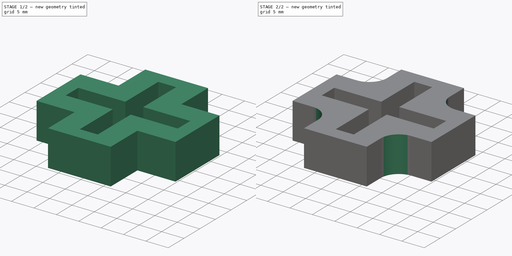
[diagram: build sequence overview — one tinted view per stage of 2, left to right]
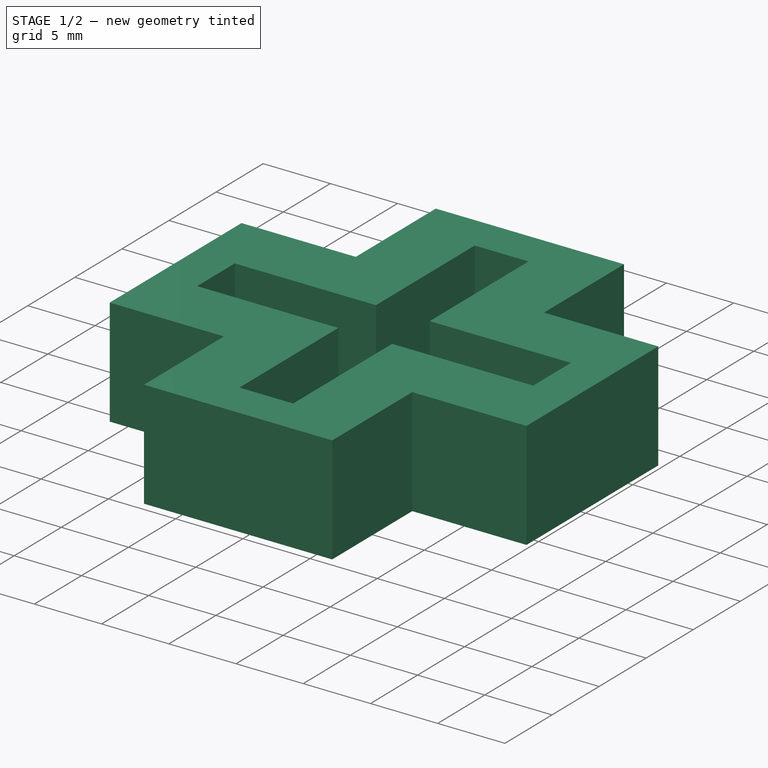
[diagram: stage 1 of 2 — iso view after this stage's code; geometry added in this stage tinted green]
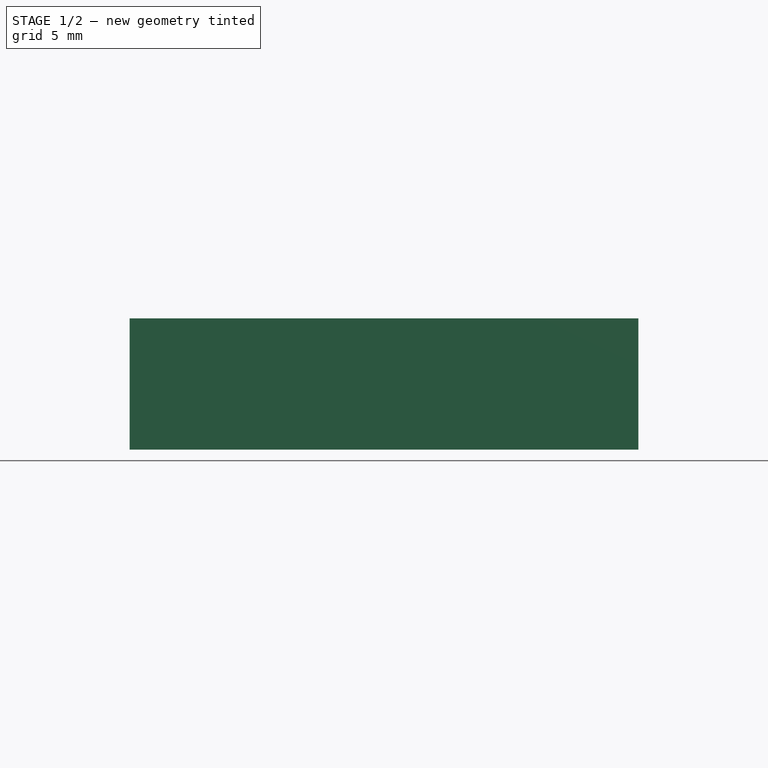
[diagram: stage 1 of 2 — front view after this stage's code; geometry added in this stage tinted green]
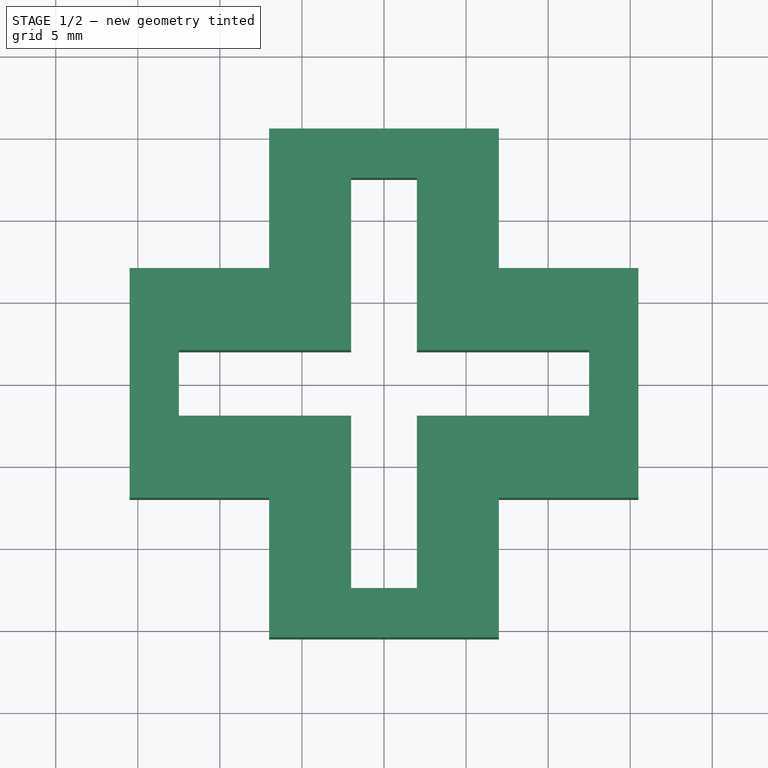
[diagram: stage 1 of 2 — top view after this stage's code; geometry added in this stage tinted green]
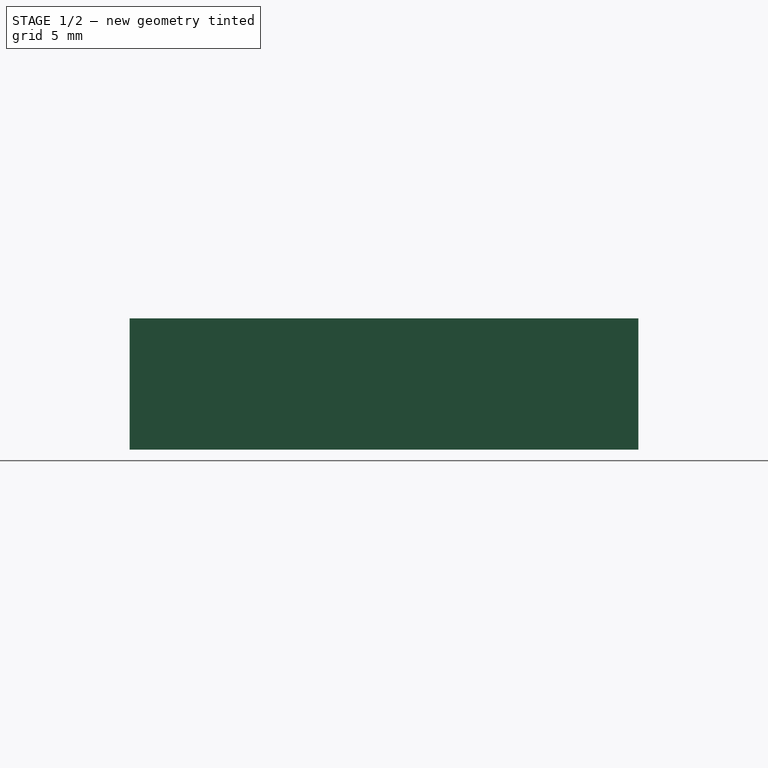
[diagram: stage 1 of 2 — right view after this stage's code; geometry added in this stage tinted green]
FCSTD DOCUMENT  (FreeCAD 0.21R33771 (Git))
Label: plate holder
License: All rights reserved
LicenseURL: https://en.wikipedia.org/wiki/All_rights_reserved
objects: Sketcher::SketchObject×1, PartDesign::Pad×1, PartDesign::Fillet×1, PartDesign::Body×1
note: 6 computed .brp shape members not serialized (recipe doc carries the construction recipe); baked Part::Feature solids carry a one-line shape summary decoded from their .brp

FEATURE [Sketcher::SketchObject] Sketch
  FullyConstrained = true
  MapMode = 5
  Support = -> [XY_Plane]
  sketch-geometry (24):
    g0: LineSegment StartX=-2 StartY=2 StartZ=0 EndX=-2 EndY=12.5 EndZ=0
    g1: LineSegment StartX=-2 StartY=12.5 StartZ=0 EndX=2 EndY=12.5 EndZ=0
    g2: LineSegment StartX=2 StartY=12.5 StartZ=0 EndX=2 EndY=2 EndZ=0
    g3: LineSegment StartX=2 StartY=2 StartZ=0 EndX=12.5 EndY=2 EndZ=0
    g4: LineSegment StartX=12.5 StartY=2 StartZ=0 EndX=12.5 EndY=-2 EndZ=0
    g5: LineSegment StartX=12.5 StartY=-2 StartZ=0 EndX=2 EndY=-2 EndZ=0
    g6: LineSegment StartX=2 StartY=-2 StartZ=0 EndX=2 EndY=-12.5 EndZ=0
    g7: LineSegment StartX=2 StartY=-12.5 StartZ=0 EndX=-2 EndY=-12.5 EndZ=0
    g8: LineSegment StartX=-2 StartY=-12.5 StartZ=0 EndX=-2 EndY=-2 EndZ=0
    g9: LineSegment StartX=-2 StartY=-2 StartZ=0 EndX=-12.5 EndY=-2 EndZ=0
    g10: LineSegment StartX=-12.5 StartY=-2 StartZ=0 EndX=-12.5 EndY=2 EndZ=0
    g11: LineSegment StartX=-12.5 StartY=2 StartZ=0 EndX=-2 EndY=2 EndZ=0
    g12: LineSegment StartX=-7 StartY=7 StartZ=0 EndX=-7 EndY=15.5 EndZ=0
    g13: LineSegment StartX=-7 StartY=15.5 StartZ=0 EndX=7 EndY=15.5 EndZ=0
    g14: LineSegment StartX=7 StartY=15.5 StartZ=0 EndX=7 EndY=7 EndZ=0
    g15: LineSegment StartX=7 StartY=7 StartZ=0 EndX=15.5 EndY=7 EndZ=0
    g16: LineSegment StartX=15.5 StartY=7 StartZ=0 EndX=15.5 EndY=-7 EndZ=0
    g17: LineSegment StartX=15.5 StartY=-7 StartZ=0 EndX=7 EndY=-7 EndZ=0
    g18: LineSegment StartX=7 StartY=-7 StartZ=0 EndX=7 EndY=-15.5 EndZ=0
    g19: LineSegment StartX=7 StartY=-15.5 StartZ=0 EndX=-7 EndY=-15.5 EndZ=0
    g20: LineSegment StartX=-7 StartY=-15.5 StartZ=0 EndX=-7 EndY=-7 EndZ=0
    g21: LineSegment StartX=-7 StartY=-7 StartZ=0 EndX=-15.5 EndY=-7 EndZ=0
    g22: LineSegment StartX=-15.5 StartY=-7 StartZ=0 EndX=-15.5 EndY=7 EndZ=0
    g23: LineSegment StartX=-15.5 StartY=7 StartZ=0 EndX=-7 EndY=7 EndZ=0
  constraints (70):
    c: Vertical(g0)
    c: Coincident(g0,g1)
    c: Horizontal(g1)
    c: Coincident(g1,g2)
    c: Vertical(g2)
    c: Coincident(g2,g3)
    c: Horizontal(g3)
    c: Coincident(g3,g4)
    c: Coincident(g4,g5)
    c: Horizontal(g5)
    c: Coincident(g5,g6)
    c: Coincident(g6,g7)
    c: Horizontal(g7)
    c: Coincident(g7,g8)
    c: Vertical(g8)
    c: Coincident(g8,g9)
    c: Horizontal(g9)
    c: Coincident(g9,g10)
    c: Vertical(g10)
    c: Coincident(g10,g11)
    c: Coincident(g11,g0)
    c: Horizontal(g11)
    c: Vertical(g12)
    c: Coincident(g12,g13)
    c: Horizontal(g13)
    c: Coincident(g13,g14)
    c: Vertical(g14)
    c: Coincident(g14,g15)
    c: Horizontal(g15)
    c: Coincident(g15,g16)
    c: Coincident(g16,g17)
    c: Coincident(g17,g18)
    c: Coincident(g18,g19)
    c: Coincident(g19,g20)
    c: Coincident(g20,g21)
    c: Horizontal(g21)
    c: Coincident(g21,g22)
    c: Coincident(g22,g23)
    c: Coincident(g23,g12)
    c: Horizontal(g23)
    c: Horizontal(g19)
    c: Horizontal(g17)
    c: Vertical(g18)
    c: Vertical(g16)
    c: Vertical(g4)
    c: Vertical(g22)
    c: Vertical(g20)
    c: Vertical(g6)
    c: Vertical(g8,g0)
    c: Vertical(g5,g2)
    c: Horizontal(g8,g5)
    c: Horizontal(g0,g2)
    c: DistanceY(g6,g1) = 25
    c: DistanceX(g0,g2) = 4
    c: DistanceY(g5,g2) = 4
    c: DistanceX(g9,g4) = 25
    c: Equal(g9,g5)
    c: Equal(g0,g8)
    c: Symmetric(g8,g2,g-1)
    c: DistanceX(g12,g0) = 5
    c: DistanceX(g1,g14) = 5
    c: Vertical(g17,g14)
    c: Horizontal(g12,g14)
    c: Horizontal(g20,g17)
    c: Symmetric(g20,g14,g-1)
    c: DistanceX(g4,g16) = 3
    c: DistanceX(g21,g9) = 3
    c: DistanceY(g19,g7) = 3
    c: DistanceY(g0,g12) = 3
    c: DistanceY(g10,g12) = 5
FEATURE [PartDesign::Pad] Pad
  Direction = (0,0,1)
  Length = 8
  Length2 = 10
  Profile = -> Sketch
  ReferenceAxis = -> Sketch [N_Axis]
  Type = 0
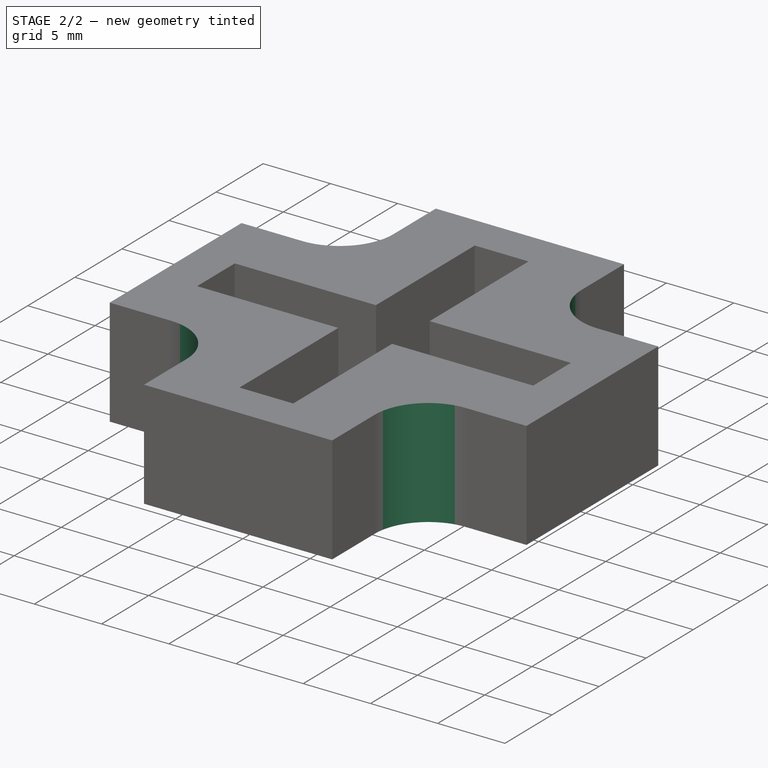
[diagram: stage 2 of 2 — iso view after this stage's code; geometry added in this stage tinted green]
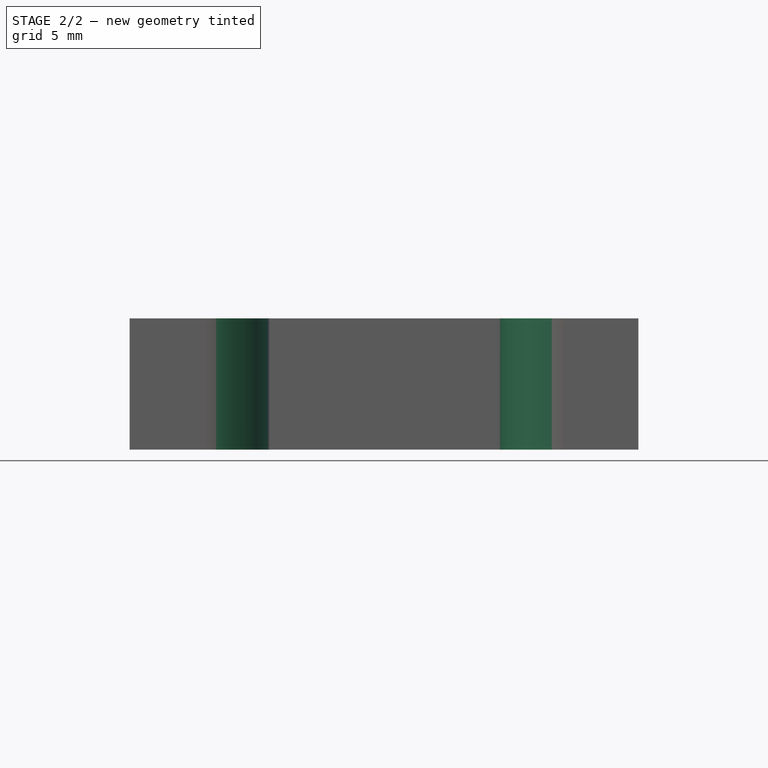
[diagram: stage 2 of 2 — front view after this stage's code; geometry added in this stage tinted green]
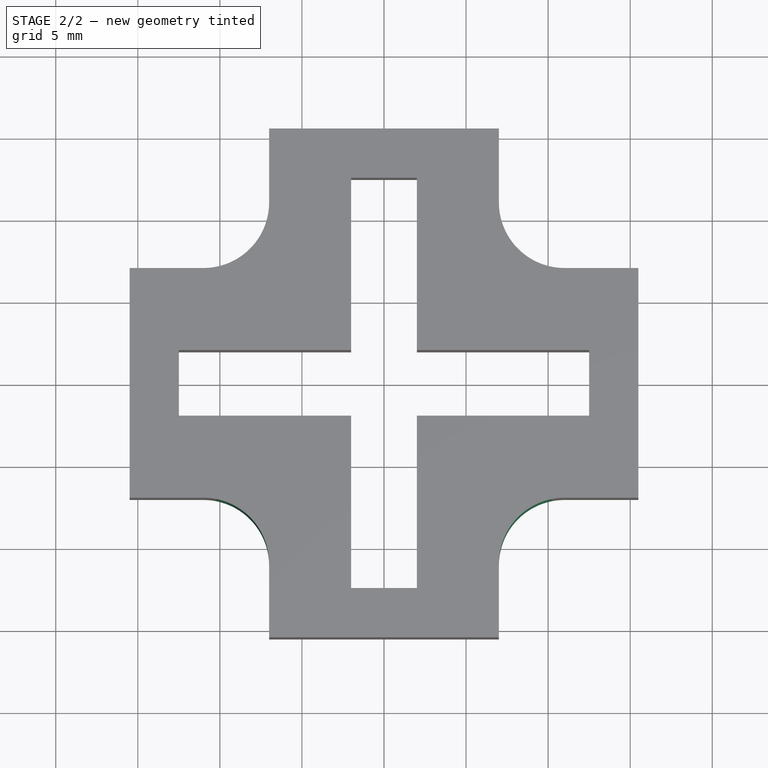
[diagram: stage 2 of 2 — top view after this stage's code; geometry added in this stage tinted green]
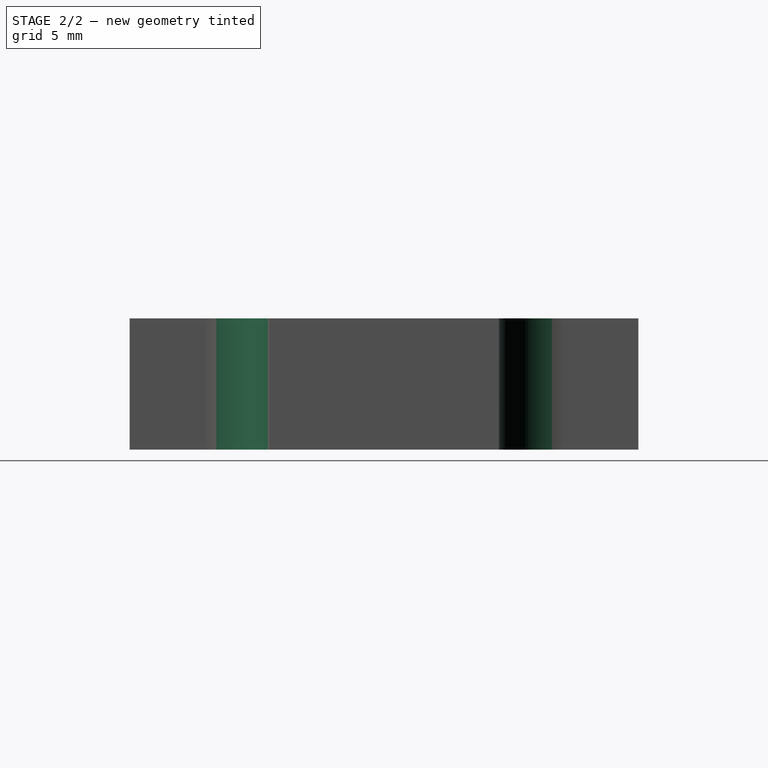
[diagram: stage 2 of 2 — right view after this stage's code; geometry added in this stage tinted green]
FEATURE [PartDesign::Fillet] Fillet
  Base = -> Pad [Edge17,Edge26,Edge1,Edge8]
  BaseFeature = -> Pad
  Radius = 4
  SupportTransform = false
  UseAllEdges = false
FEATURE [PartDesign::Body] Body
  Group = -> [Sketch,Pad,Fillet]
  Origin = -> Origin
  Tip = -> Fillet
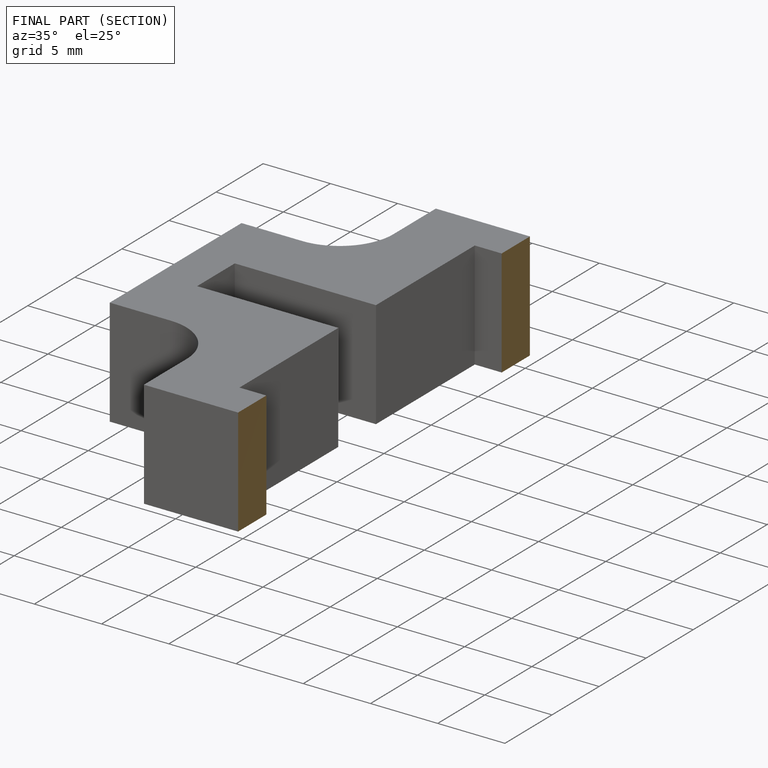
[diagram: finished part — half-section view (interior)]
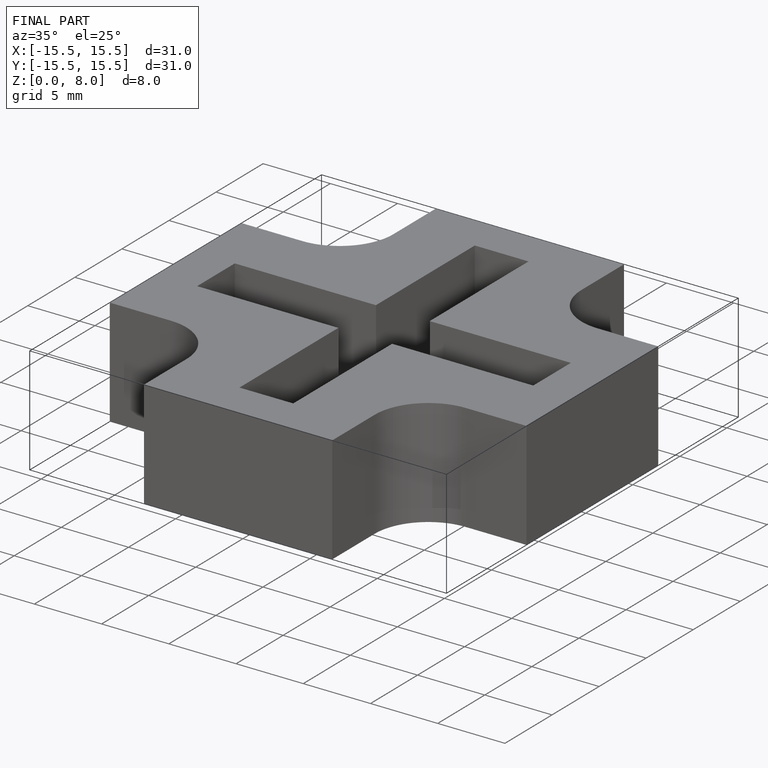
[diagram: finished part — iso view with bounding-box wireframe]
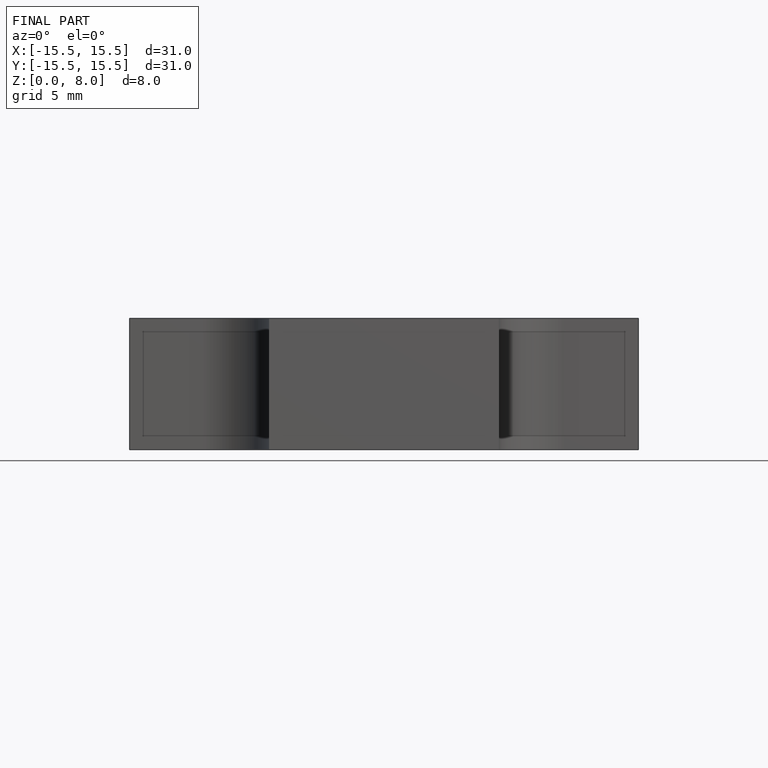
[diagram: finished part — front view with bounding-box wireframe]
